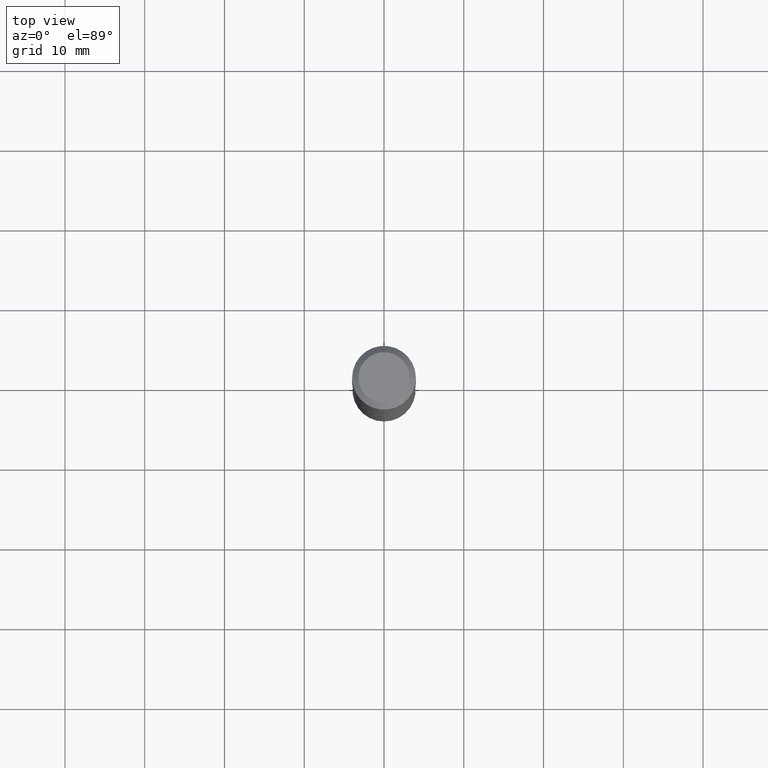
[diagram: clean part render]
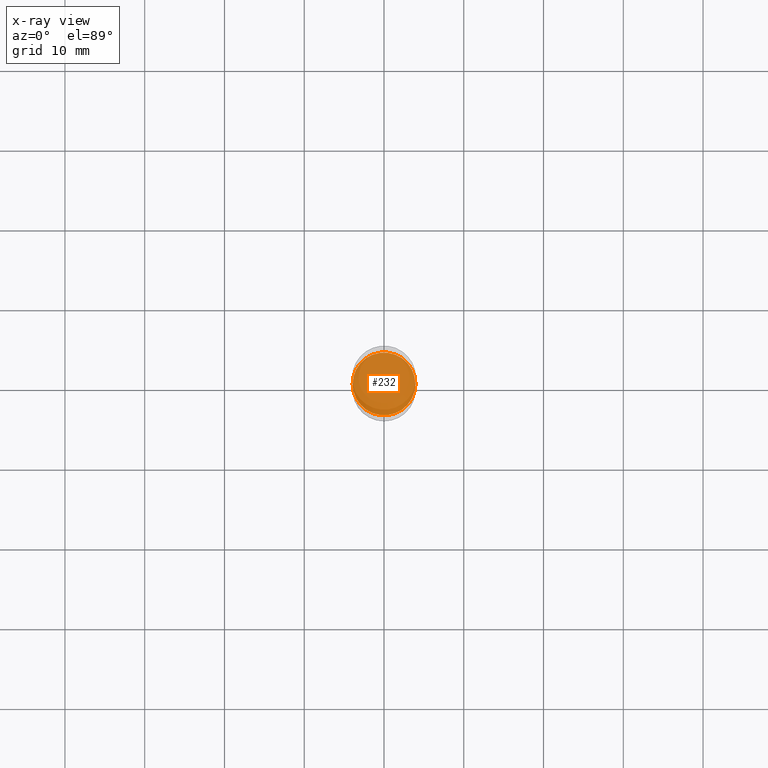
[diagram: x-ray — body ghosted, one internal face saturated and labeled with its STEP entity id]
A machine part, top view, then the same camera in x-ray: the body is ghosted and one INTERNAL B-rep face — a face not visible from any outside direction — is saturated and labeled: STEP entity #232.
In plain terms, the highlighted planar face has unit normal (-0, 0, 1).
Its self-contained STEP definition (entity closure, byte-faithful):
#20 = DIRECTION ( 'NONE',  ( -2.445468806185136597E-29, 3.491481338843145583E-15, 1.000000000000000000 ) ) ;
#34 = VERTEX_POINT ( 'NONE', #456 ) ;
#59 = PLANE ( 'NONE',  #419 ) ;
#71 = CARTESIAN_POINT ( 'NONE',  ( 4.419206679657160853E-29, -6.309455927423449056E-15, -1.807100000000000151 ) ) ;
#154 = EDGE_LOOP ( 'NONE', ( #192, #285 ) ) ;
#172 = CARTESIAN_POINT ( 'NONE',  ( 0.1549999999999999989, -7.391815142464819923E-15, -1.807100000000000151 ) ) ;
#178 = VERTEX_POINT ( 'NONE', #172 ) ;
#188 = CIRCLE ( 'NONE', #400, 0.1549999999999999989 ) ;
#192 = ORIENTED_EDGE ( 'NONE', *, *, #395, .F. ) ;
#222 = DIRECTION ( 'NONE',  ( 1.000000000000000000, -6.982962677686263555E-15, 0.000000000000000000 ) ) ;
#232 = ADVANCED_FACE ( 'NONE', ( #391 ), #59, .F. ) ;
#248 = EDGE_CURVE ( 'NONE', #34, #178, #188, .T. ) ;
#265 = DIRECTION ( 'NONE',  ( 1.000000000000000000, -6.982962677686263555E-15, 0.000000000000000000 ) ) ;
#285 = ORIENTED_EDGE ( 'NONE', *, *, #248, .F. ) ;
#326 = DIRECTION ( 'NONE',  ( -2.438088387897960049E-29, 3.491481338843145188E-15, 1.000000000000000000 ) ) ;
#353 = CARTESIAN_POINT ( 'NONE',  ( 4.419206679657160853E-29, -6.309455927423449056E-15, -1.807100000000000151 ) ) ;
#369 = DIRECTION ( 'NONE',  ( 1.000000000000000000, -6.982962677686265922E-15, 4.876176775795935793E-29 ) ) ;
#381 = AXIS2_PLACEMENT_3D ( 'NONE', #353, #20, #265 ) ;
#391 = FACE_OUTER_BOUND ( 'NONE', #154, .T. ) ;
#395 = EDGE_CURVE ( 'NONE', #178, #34, #412, .T. ) ;
#400 = AXIS2_PLACEMENT_3D ( 'NONE', #71, #443, #222 ) ;
#412 = CIRCLE ( 'NONE', #381, 0.1549999999999999989 ) ;
#419 = AXIS2_PLACEMENT_3D ( 'NONE', #483, #326, #369 ) ;
#443 = DIRECTION ( 'NONE',  ( -2.445468806185136597E-29, 3.491481338843145583E-15, 1.000000000000000000 ) ) ;
#456 = CARTESIAN_POINT ( 'NONE',  ( -0.1549999999999999989, -5.205465459821182378E-15, -1.807100000000000151 ) ) ;
#483 = CARTESIAN_POINT ( 'NONE',  ( 4.419206679657160853E-29, -6.309455927423449056E-15, -1.807100000000000151 ) ) ;